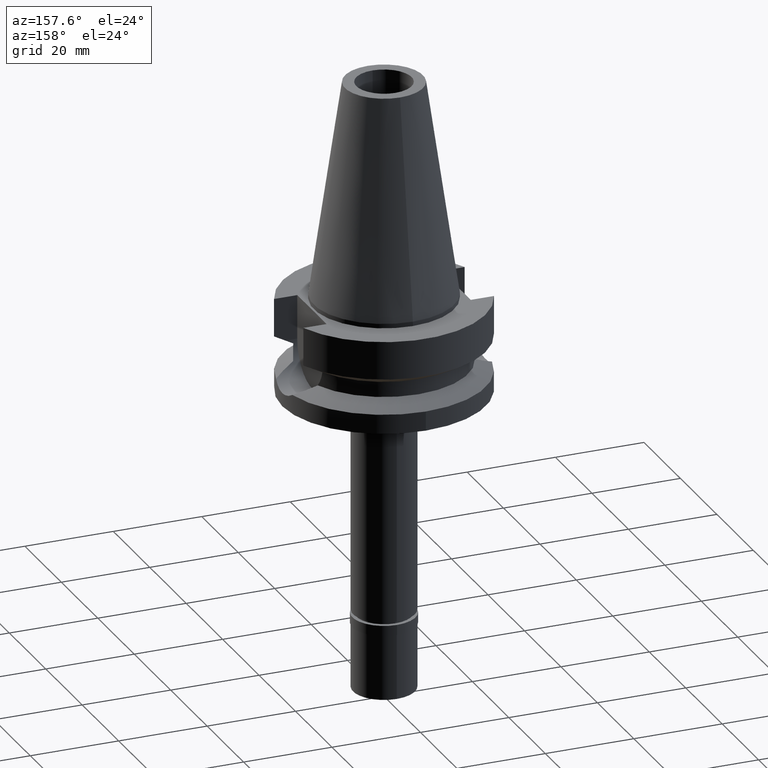
[diagram: clean part render]
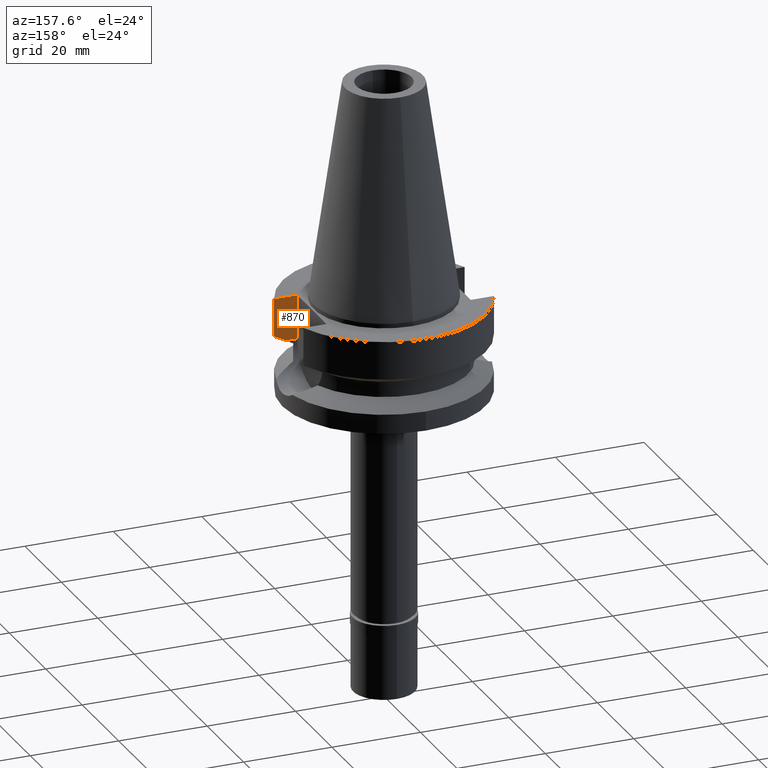
[diagram: same view with one face highlighted and labeled with its STEP entity id]
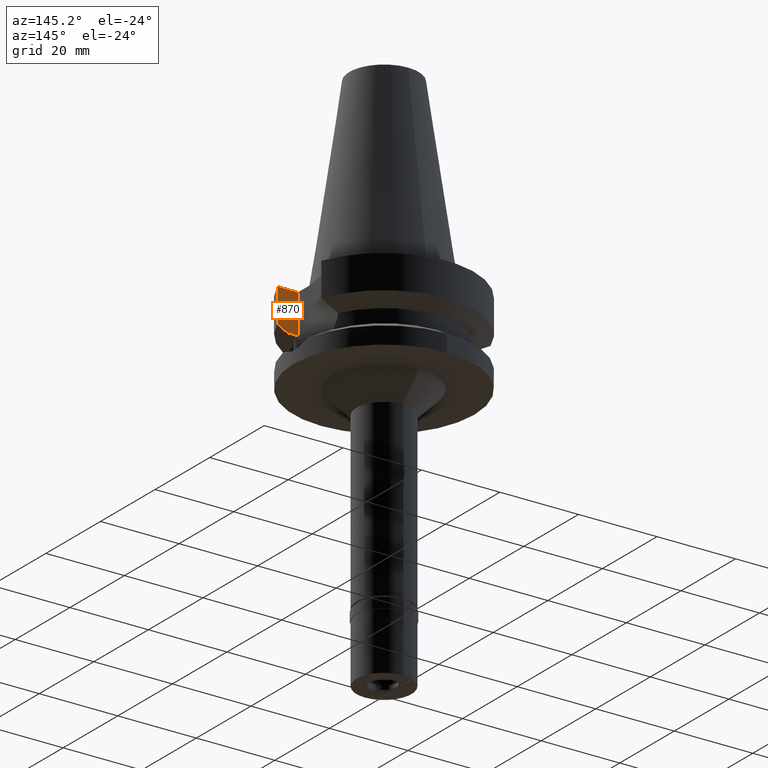
[diagram: same view with one face highlighted and labeled with its STEP entity id]
A machine part, auxiliary view. The second image highlights one B-rep face of the part: STEP entity #870.
A second angle (auxiliary view) of the same face is appended — the face is thin or edge-on in the first view.
In plain terms, the highlighted planar face has unit normal (0, -1, 0).
Its self-contained STEP definition (entity closure, byte-faithful):
#100 = CARTESIAN_POINT ( 'NONE',  ( 18.96930827810999887, -8.050001277905000308, -10.94999977541999847 ) ) ;
#173 = CARTESIAN_POINT ( 'NONE',  ( 18.96930827810999887, -8.050001277905000308, -10.94999977541999847 ) ) ;
#191 = CARTESIAN_POINT ( 'NONE',  ( 16.29999999999999716, -8.050000000000000711, -10.94999999999999929 ) ) ;
#254 = VECTOR ( 'NONE', #2452, 1000.000000000000000 ) ;
#261 = EDGE_CURVE ( 'NONE', #2256, #394, #1203, .T. ) ;
#297 = VERTEX_POINT ( 'NONE', #1931 ) ;
#301 = CARTESIAN_POINT ( 'NONE',  ( 16.29999999999999716, -8.050000000000000711, -1.000000000000000000 ) ) ;
#337 = FACE_OUTER_BOUND ( 'NONE', #2009, .T. ) ;
#394 = VERTEX_POINT ( 'NONE', #1962 ) ;
#434 = ORIENTED_EDGE ( 'NONE', *, *, #2058, .T. ) ;
#578 = VERTEX_POINT ( 'NONE', #2753 ) ;
#741 = VECTOR ( 'NONE', #1170, 1000.000000000000000 ) ;
#762 = CARTESIAN_POINT ( 'NONE',  ( 21.54715579650000024, -8.050000000000000711, -1.000000000000000000 ) ) ;
#763 = DIRECTION ( 'NONE',  ( -0.9999999999998817612, 4.787399890767908131E-07, -8.413513822531849610E-08 ) ) ;
#765 = ORIENTED_EDGE ( 'NONE', *, *, #2018, .T. ) ;
#870 = ADVANCED_FACE ( 'NONE', ( #337 ), #1865, .F. ) ;
#872 = CARTESIAN_POINT ( 'NONE',  ( 20.64294517900100701, -8.050004183286992188, -10.05623947173488197 ) ) ;
#1170 = DIRECTION ( 'NONE',  ( 1.000000000000000000, 0.0000000000000000000, 0.0000000000000000000 ) ) ;
#1203 = LINE ( 'NONE', #100, #1263 ) ;
#1213 = EDGE_CURVE ( 'NONE', #2256, #297, #2178, .T. ) ;
#1263 = VECTOR ( 'NONE', #763, 1000.000000000000227 ) ;
#1321 = CARTESIAN_POINT ( 'NONE',  ( 16.29999999999999716, -8.050000000000000711, -1.000000000000000000 ) ) ;
#1373 = LINE ( 'NONE', #301, #741 ) ;
#1441 = CARTESIAN_POINT ( 'NONE',  ( 16.29999999999999716, -8.050000000000000711, -1.000000000000000000 ) ) ;
#1544 = LINE ( 'NONE', #191, #254 ) ;
#1556 = ORIENTED_EDGE ( 'NONE', *, *, #261, .T. ) ;
#1565 = CARTESIAN_POINT ( 'NONE',  ( 21.54715579650000024, -8.050000000000000711, -9.567208369710998639 ) ) ;
#1697 = CARTESIAN_POINT ( 'NONE',  ( 19.78370350314376935, -8.050001299768915430, -10.51717019556136457 ) ) ;
#1805 = ORIENTED_EDGE ( 'NONE', *, *, #1213, .F. ) ;
#1865 = PLANE ( 'NONE',  #2451 ) ;
#1931 = CARTESIAN_POINT ( 'NONE',  ( 21.54715579650000024, -8.050000000000000711, -9.567208369710998639 ) ) ;
#1962 = CARTESIAN_POINT ( 'NONE',  ( 16.29999999999999716, -8.050000000000000711, -10.94999999999999929 ) ) ;
#2009 = EDGE_LOOP ( 'NONE', ( #1556, #2446, #434, #765, #1805 ) ) ;
#2018 = EDGE_CURVE ( 'NONE', #578, #297, #2764, .T. ) ;
#2049 = EDGE_CURVE ( 'NONE', #394, #2551, #1544, .T. ) ;
#2058 = EDGE_CURVE ( 'NONE', #2551, #578, #1373, .T. ) ;
#2130 = DIRECTION ( 'NONE',  ( -9.129686183793688433E-08, -2.443710705671914470E-07, -0.9999999999999659162 ) ) ;
#2178 = B_SPLINE_CURVE_WITH_KNOTS ( 'NONE', 3,
 ( #173, #1697, #872, #1565 ),
 .UNSPECIFIED., .F., .F.,
 ( 4, 4 ),
 ( 0.0000000000000000000, 1.000000000000000000 ),
 .UNSPECIFIED. ) ;
#2256 = VERTEX_POINT ( 'NONE', #2818 ) ;
#2318 = DIRECTION ( 'NONE',  ( 0.0000000000000000000, -1.000000000000000000, 0.0000000000000000000 ) ) ;
#2415 = VECTOR ( 'NONE', #2130, 1000.000000000000114 ) ;
#2446 = ORIENTED_EDGE ( 'NONE', *, *, #2049, .T. ) ;
#2451 = AXIS2_PLACEMENT_3D ( 'NONE', #1441, #2318, #2559 ) ;
#2452 = DIRECTION ( 'NONE',  ( 0.0000000000000000000, 0.0000000000000000000, 1.000000000000000000 ) ) ;
#2551 = VERTEX_POINT ( 'NONE', #1321 ) ;
#2559 = DIRECTION ( 'NONE',  ( 0.0000000000000000000, 0.0000000000000000000, -1.000000000000000000 ) ) ;
#2753 = CARTESIAN_POINT ( 'NONE',  ( 21.54715579650000024, -8.050000000000000711, -1.000000000000000000 ) ) ;
#2764 = LINE ( 'NONE', #762, #2415 ) ;
#2818 = CARTESIAN_POINT ( 'NONE',  ( 18.96930827810999887, -8.050001277905000308, -10.94999977541999847 ) ) ;